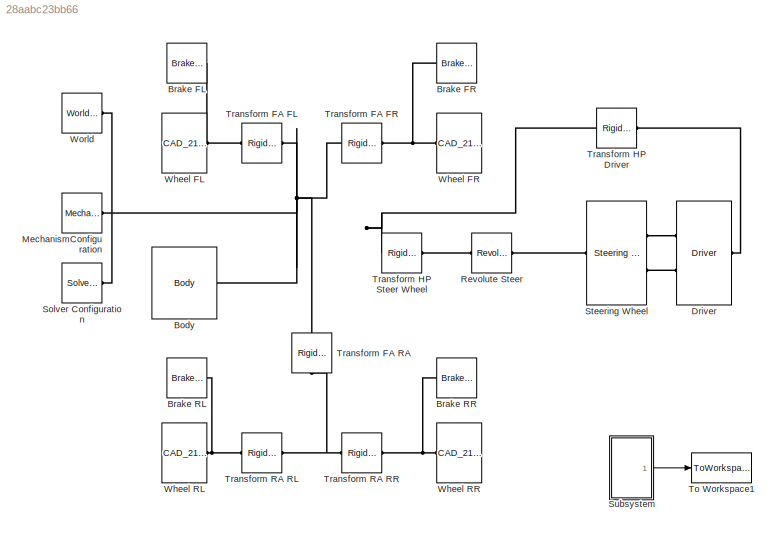
MODEL slx_28aabc23bb66
KIND model
CONFIG AbsTol = auto
CONFIG EnableMultiTasking = off
CONFIG FixedStep = auto
CONFIG MaxStep = auto
CONFIG MinStep = auto
CONFIG RelTol = 1e-3
CONFIG SampleTimeConstraint = Unconstrained
CONFIG SolverName = VariableStepAuto
CONFIG StartTime = 0.0
CONFIG StopTime = 10.0
WORKSPACE source: mxarray member
WORKSPACE smiData: object (value not decoded)
BLOCK [Reference] Body  REF=Sedan_Hamba_Parts/Body
  Ports = [0, 0, 0, 0, 0, 1]
  SourceBlock = Sedan_Hamba_Parts/Body
BLOCK [Reference] Brake FL  REF=Sedan_Hamba_Parts/Brake L
  Ports = [0, 0, 0, 0, 0, 1]
  SourceBlock = Sedan_Hamba_Parts/Brake L
  SourceType = SubSystem
BLOCK [Reference] Brake FR  REF=Sedan_Hamba_Parts/Brake R
  Ports = [0, 0, 0, 0, 0, 1]
  SourceBlock = Sedan_Hamba_Parts/Brake R
  SourceType = SubSystem
BLOCK [Reference] Brake RL  REF=Sedan_Hamba_Parts/Brake L
  Ports = [0, 0, 0, 0, 0, 1]
  SourceBlock = Sedan_Hamba_Parts/Brake L
  SourceType = SubSystem
BLOCK [Reference] Brake RR  REF=Sedan_Hamba_Parts/Brake R
  Ports = [0, 0, 0, 0, 0, 1]
  SourceBlock = Sedan_Hamba_Parts/Brake R
  SourceType = SubSystem
BLOCK [Reference] Driver  REF=Sedan_Hamba_Parts/Driver
  Ports = [0, 0, 0, 0, 0, 2, 1]
  SourceBlock = Sedan_Hamba_Parts/Driver
BLOCK [Reference] MechanismConfiguration  REF=sm_lib/Utilities/Mechanism
Configuration
  Ports = [0, 0, 0, 0, 0, 0, 1]
  SourceBlock = sm_lib/Utilities/Mechanism\nConfiguration
  SourceProductBaseCode = MS
  SourceType = Mechanism\nConfiguration
BLOCK [Reference] Revolute Steer  REF=sm_lib/Joints/Revolute Joint
  Ports = [0, 0, 0, 0, 0, 1, 1]
  SourceBlock = sm_lib/Joints/Revolute Joint
  SourceProductBaseCode = MS
  SourceType = Revolute Joint
BLOCK [Reference] Solver Configuration  REF=nesl_utility/Solver
Configuration
  Ports = [0, 0, 0, 0, 0, 0, 1]
  SourceBlock = nesl_utility/Solver\nConfiguration
  SourceProductBaseCode = SS,PW,VE
  SourceType = Solver\nConfiguration
BLOCK [Reference] Steering Wheel  REF=Sedan_Hamba_Parts/Steering Wheel
  Ports = [0, 0, 0, 0, 0, 1, 2]
  SourceBlock = Sedan_Hamba_Parts/Steering Wheel
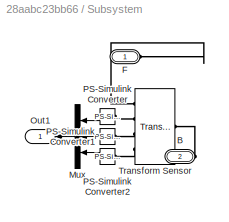
BLOCK [SubSystem] Subsystem
  Commented = on
  Ports = [0, 1, 0, 0, 0, 2]
  RequestExecContextInheritance = off
BLOCK [PMIOPort] Subsystem/B
  Port = 2
  Side = Left
BLOCK [PMIOPort] Subsystem/F
  Side = Left
BLOCK [Mux] Subsystem/Mux
  DisplayOption = bar
  Inputs = 3
  Ports = [3, 1]
BLOCK [Outport] Subsystem/Out1
  VectorParamsAs1DForOutWhenUnconnected = off
BLOCK [Reference] Subsystem/PS-Simulink Converter  REF=nesl_utility/PS-Simulink
Converter
  Ports = [0, 1, 0, 0, 0, 1]
  SourceBlock = nesl_utility/PS-Simulink\nConverter
  SourceProductBaseCode = SS,PW,VE
  SourceType = PS-Simulink\nConverter
BLOCK [Reference] Subsystem/PS-Simulink Converter1  REF=nesl_utility/PS-Simulink
Converter
  Ports = [0, 1, 0, 0, 0, 1]
  SourceBlock = nesl_utility/PS-Simulink\nConverter
  SourceProductBaseCode = SS,PW,VE
  SourceType = PS-Simulink\nConverter
BLOCK [Reference] Subsystem/PS-Simulink Converter2  REF=nesl_utility/PS-Simulink
Converter
  Ports = [0, 1, 0, 0, 0, 1]
  SourceBlock = nesl_utility/PS-Simulink\nConverter
  SourceProductBaseCode = SS,PW,VE
  SourceType = PS-Simulink\nConverter
BLOCK [Reference] Subsystem/Transform Sensor  REF=sm_lib/Frames and
Transforms/Transform
Sensor
  Ports = [0, 0, 0, 0, 0, 1, 4]
  SourceBlock = sm_lib/Frames and\nTransforms/Transform\nSensor
  SourceProductBaseCode = MS
  SourceType = Transform\nSensor
BLOCK [ToWorkspace] To Workspace1
  Commented = on
  FixptAsFi = on
  MaxDataPoints = 1
  Ports = [1]
  SampleTime = -1
  SaveFormat = Timeseries
  VariableName = m_xyz
BLOCK [Reference] Transform FA FL  REF=sm_lib/Frames and
Transforms/Rigid
Transform
  Ports = [0, 0, 0, 0, 0, 1, 1]
  SourceBlock = sm_lib/Frames and\nTransforms/Rigid\nTransform
  SourceProductBaseCode = MS
  SourceType = Rigid\nTransform
BLOCK [Reference] Transform FA FR  REF=sm_lib/Frames and
Transforms/Rigid
Transform
  Ports = [0, 0, 0, 0, 0, 1, 1]
  SourceBlock = sm_lib/Frames and\nTransforms/Rigid\nTransform
  SourceProductBaseCode = MS
  SourceType = Rigid\nTransform
BLOCK [Reference] Transform FA RA  REF=sm_lib/Frames and
Transforms/Rigid
Transform
  NameLocation = left
  Ports = [0, 0, 0, 0, 0, 1, 1]
  SourceBlock = sm_lib/Frames and\nTransforms/Rigid\nTransform
  SourceProductBaseCode = MS
  SourceType = Rigid\nTransform
BLOCK [Reference] Transform HP Driver  REF=sm_lib/Frames and
Transforms/Rigid
Transform
  Ports = [0, 0, 0, 0, 0, 1, 1]
  SourceBlock = sm_lib/Frames and\nTransforms/Rigid\nTransform
  SourceProductBaseCode = MS
  SourceType = Rigid\nTransform
BLOCK [Reference] Transform HP Steer Wheel  REF=sm_lib/Frames and
Transforms/Rigid
Transform
  Ports = [0, 0, 0, 0, 0, 1, 1]
  SourceBlock = sm_lib/Frames and\nTransforms/Rigid\nTransform
  SourceProductBaseCode = MS
  SourceType = Rigid\nTransform
BLOCK [Reference] Transform RA RL  REF=sm_lib/Frames and
Transforms/Rigid
Transform
  Ports = [0, 0, 0, 0, 0, 1, 1]
  SourceBlock = sm_lib/Frames and\nTransforms/Rigid\nTransform
  SourceProductBaseCode = MS
  SourceType = Rigid\nTransform
BLOCK [Reference] Transform RA RR  REF=sm_lib/Frames and
Transforms/Rigid
Transform
  Ports = [0, 0, 0, 0, 0, 1, 1]
  SourceBlock = sm_lib/Frames and\nTransforms/Rigid\nTransform
  SourceProductBaseCode = MS
  SourceType = Rigid\nTransform
BLOCK [Reference] Wheel FL  REF=Sedan_Hamba_Parts/CAD_213_40R21
  AttributesFormatString = %<LabelModeActiveChoice>
  Ports = [0, 0, 0, 0, 0, 1]
  SourceBlock = Sedan_Hamba_Parts/CAD_213_40R21
BLOCK [Reference] Wheel FR  REF=Sedan_Hamba_Parts/CAD_213_40R21
  AttributesFormatString = %<LabelModeActiveChoice>
  Ports = [0, 0, 0, 0, 0, 1]
  SourceBlock = Sedan_Hamba_Parts/CAD_213_40R21
BLOCK [Reference] Wheel RL  REF=Sedan_Hamba_Parts/CAD_213_40R21
  AttributesFormatString = %<LabelModeActiveChoice>
  Ports = [0, 0, 0, 0, 0, 1]
  SourceBlock = Sedan_Hamba_Parts/CAD_213_40R21
BLOCK [Reference] Wheel RR  REF=Sedan_Hamba_Parts/CAD_213_40R21
  AttributesFormatString = %<LabelModeActiveChoice>
  Ports = [0, 0, 0, 0, 0, 1]
  SourceBlock = Sedan_Hamba_Parts/CAD_213_40R21
BLOCK [Reference] World  REF=sm_lib/Frames and
Transforms/World Frame
  Ports = [0, 0, 0, 0, 0, 0, 1]
  SourceBlock = sm_lib/Frames and\nTransforms/World Frame
  SourceProductBaseCode = MS
  SourceType = World Frame
LINE Subsystem/Mux:1 -> Subsystem/Out1:1
LINE Subsystem/PS-Simulink Converter1:1 -> Subsystem/Mux:2
LINE Subsystem/PS-Simulink Converter2:1 -> Subsystem/Mux:3
LINE Subsystem/PS-Simulink Converter:1 -> Subsystem/Mux:1
LINE Subsystem:1 -> To Workspace1:1
PNET net1: Body:LConn1 -- MechanismConfiguration:RConn1 -- Solver Configuration:RConn1 -- Transform FA FL:LConn1 -- Transform FA FR:LConn1 -- Transform FA RA:LConn1 -- Transform HP Driver:LConn1 -- Transform HP Steer Wheel:LConn1 -- World:RConn1
PNET net2: Brake FL:LConn1 -- Transform FA FL:RConn1 -- Wheel FL:LConn1
PNET net3: Brake FR:LConn1 -- Transform FA FR:RConn1 -- Wheel FR:LConn1
PNET net4: Brake RL:LConn1 -- Transform RA RL:RConn1 -- Wheel RL:LConn1
PNET net5: Brake RR:LConn1 -- Transform RA RR:RConn1 -- Wheel RR:LConn1
PLINE Driver:LConn1 -- Steering Wheel:RConn1
PLINE Driver:LConn2 -- Steering Wheel:RConn2
PLINE Driver:RConn1 -- Transform HP Driver:RConn1
PLINE Revolute Steer:LConn1 -- Transform HP Steer Wheel:RConn1
PLINE Revolute Steer:RConn1 -- Steering Wheel:LConn1
PLINE Subsystem/B:RConn1 -- Subsystem/Transform Sensor:LConn1
PLINE Subsystem/F:RConn1 -- Subsystem/Transform Sensor:RConn1
PLINE Subsystem/PS-Simulink Converter1:LConn1 -- Subsystem/Transform Sensor:RConn3
PLINE Subsystem/PS-Simulink Converter2:LConn1 -- Subsystem/Transform Sensor:RConn4
PLINE Subsystem/PS-Simulink Converter:LConn1 -- Subsystem/Transform Sensor:RConn2
PNET net6: Transform FA RA:RConn1 -- Transform RA RL:LConn1 -- Transform RA RR:LConn1
note: PNET lines group multi-terminal physical nets as a canonical sorted terminal list (undirected conserving connections); 2-terminal nets keep the pairwise PLINE form
